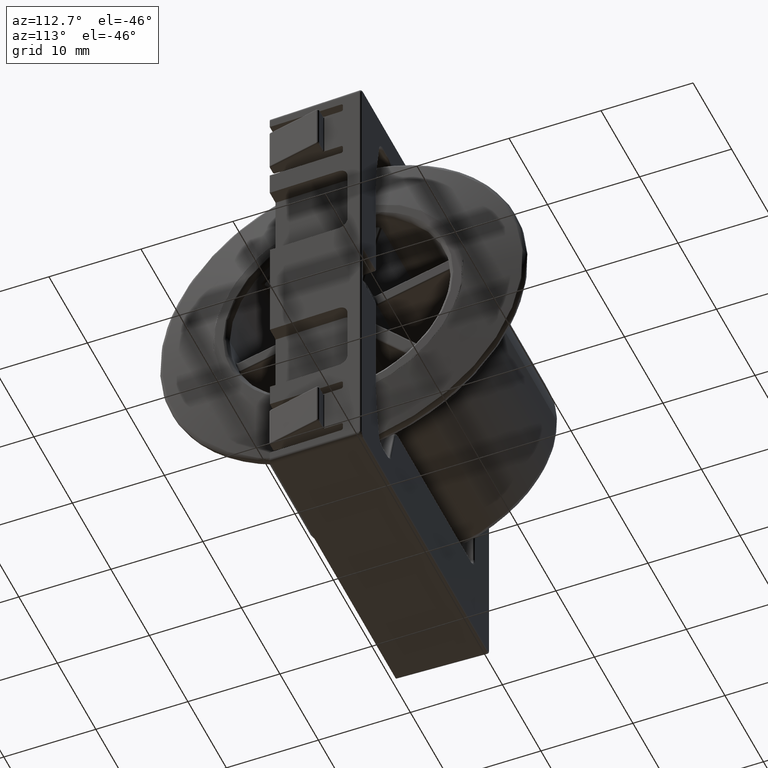
[diagram: clean part render]
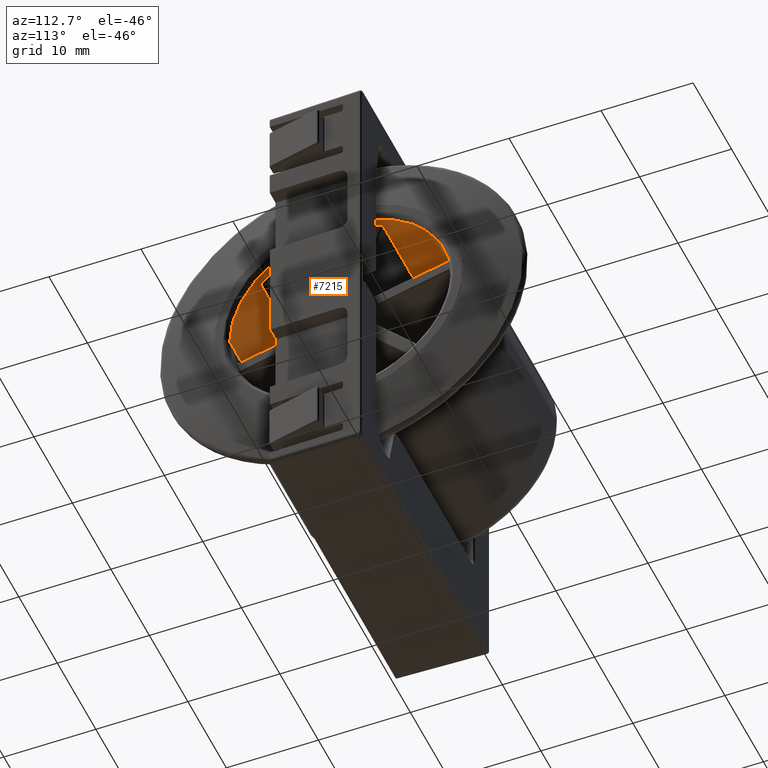
[diagram: same view with one face highlighted and labeled with its STEP entity id]
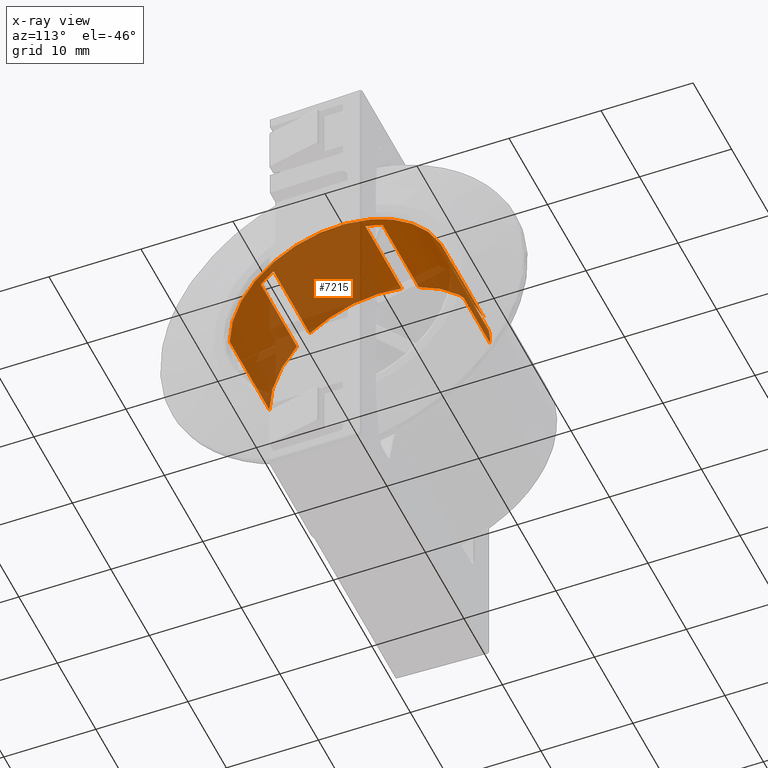
[diagram: x-ray of the same camera — body ghosted, the highlighted face saturated]
A machine part, auxiliary view. The second image highlights one B-rep face of the part: STEP entity #7215.
The next image is the same camera in x-ray: the body ghosted, the highlighted face saturated — about 63% of this face is hidden behind the body in this view.
In plain terms, the highlighted cylindrical surface (partial cylindrical patch) has radius 12 mm, axis along (1, 0, -0).
Its self-contained STEP definition (entity closure, byte-faithful):
#8 = DIRECTION ( 'NONE',  ( 1.000000000000000000, 1.473868700562970100E-017, -7.703719777548940000E-034 ) ) ;
#77 = EDGE_CURVE ( 'NONE', #23522, #9203, #17109, .T. ) ;
#351 = EDGE_CURVE ( 'NONE', #22895, #15847, #21067, .T. ) ;
#675 = VECTOR ( 'NONE', #27047, 1000.000000000000000 ) ;
#924 = CARTESIAN_POINT ( 'NONE',  ( 1.100000000000000300, -0.2693643625239829900, 11.22950230878101200 ) ) ;
#1006 = CIRCLE ( 'NONE', #19224, 12.00000000000000000 ) ;
#1454 = AXIS2_PLACEMENT_3D ( 'NONE', #14136, #23362, #21109 ) ;
#1519 = CARTESIAN_POINT ( 'NONE',  ( 1.100000000000000100, -2.126477903137598400, 11.76292450267812500 ) ) ;
#2023 = DIRECTION ( 'NONE',  ( 0.0000000000000000000, 1.000000000000000000, 0.0000000000000000000 ) ) ;
#2108 = ORIENTED_EDGE ( 'NONE', *, *, #10664, .F. ) ;
#2328 = CARTESIAN_POINT ( 'NONE',  ( 10.50000000000000000, -4.500000000000000900, -1.359533954965509900E-015 ) ) ;
#3437 = FACE_OUTER_BOUND ( 'NONE', #16529, .T. ) ;
#3600 = VECTOR ( 'NONE', #5505, 1000.000000000000000 ) ;
#3617 = DIRECTION ( 'NONE',  ( 1.000000000000000000, 1.473868700562970100E-017, -7.703719777548940000E-034 ) ) ;
#3627 = CARTESIAN_POINT ( 'NONE',  ( 10.50000000000000200, -13.50023039368646800, 7.936992683665712500 ) ) ;
#3759 = VECTOR ( 'NONE', #27382, 1000.000000000000000 ) ;
#4376 = VERTEX_POINT ( 'NONE', #20985 ) ;
#4740 = EDGE_CURVE ( 'NONE', #16416, #4376, #18727, .T. ) ;
#4778 = CARTESIAN_POINT ( 'NONE',  ( 1.099999999999999900, -4.500000000000000900, -1.359533954965509900E-015 ) ) ;
#4852 = CARTESIAN_POINT ( 'NONE',  ( 0.9000000000000010200, -2.126477903137590900, 11.76292450267814300 ) ) ;
#5117 = ORIENTED_EDGE ( 'NONE', *, *, #77, .F. ) ;
#5186 = VECTOR ( 'NONE', #20091, 1000.000000000000000 ) ;
#5237 = EDGE_CURVE ( 'NONE', #4376, #15624, #24364, .T. ) ;
#5275 = VECTOR ( 'NONE', #7250, 1000.000000000000000 ) ;
#5468 = CIRCLE ( 'NONE', #10091, 12.00000000000000000 ) ;
#5505 = DIRECTION ( 'NONE',  ( -1.000000000000000000, -1.473868700562970100E-017, 7.703719777548940000E-034 ) ) ;
#5790 = DIRECTION ( 'NONE',  ( 0.0000000000000000000, -0.2760693810520480900, -0.9611377096158172400 ) ) ;
#5873 = DIRECTION ( 'NONE',  ( 0.0000000000000000000, 1.000000000000000000, 0.0000000000000000000 ) ) ;
#6014 = ORIENTED_EDGE ( 'NONE', *, *, #9323, .F. ) ;
#6135 = CIRCLE ( 'NONE', #12942, 12.00000000000000000 ) ;
#6164 = CARTESIAN_POINT ( 'NONE',  ( 0.9000000000000011300, -13.50023039368644700, 7.936992683665692100 ) ) ;
#6785 = CIRCLE ( 'NONE', #9592, 12.00000000000000000 ) ;
#7034 = DIRECTION ( 'NONE',  ( -1.807003620809174000E-017, 1.000000000000000000, 0.0000000000000000000 ) ) ;
#7067 = CARTESIAN_POINT ( 'NONE',  ( 0.9000000000000008000, 7.500000000000000000, -1.359533954965509900E-015 ) ) ;
#7090 = VERTEX_POINT ( 'NONE', #11039 ) ;
#7215 = ADVANCED_FACE ( 'NONE', ( #3437 ), #20740, .F. ) ;
#7250 = DIRECTION ( 'NONE',  ( -1.000000000000000000, -1.473868700562970100E-017, 7.703719777548940000E-034 ) ) ;
#7402 = AXIS2_PLACEMENT_3D ( 'NONE', #15949, #18175, #7034 ) ;
#8208 = DIRECTION ( 'NONE',  ( 0.0000000000000000000, -0.2760693810520480900, -0.9611377096158172400 ) ) ;
#8479 = DIRECTION ( 'NONE',  ( -1.807003620809174000E-017, 1.000000000000000000, 0.0000000000000000000 ) ) ;
#9203 = VERTEX_POINT ( 'NONE', #24294 ) ;
#9323 = EDGE_CURVE ( 'NONE', #7090, #21336, #5468, .T. ) ;
#9411 = CARTESIAN_POINT ( 'NONE',  ( 10.50000000000000000, 6.873752490548920200, 3.825931819012501100 ) ) ;
#9573 = EDGE_CURVE ( 'NONE', #23338, #29112, #6135, .T. ) ;
#9592 = AXIS2_PLACEMENT_3D ( 'NONE', #17353, #15242, #14937 ) ;
#10091 = AXIS2_PLACEMENT_3D ( 'NONE', #4778, #8, #20431 ) ;
#10248 = VERTEX_POINT ( 'NONE', #21772 ) ;
#10607 = CIRCLE ( 'NONE', #15541, 12.00000000000000200 ) ;
#10664 = EDGE_CURVE ( 'NONE', #14793, #16416, #6785, .T. ) ;
#10792 = ORIENTED_EDGE ( 'NONE', *, *, #23291, .F. ) ;
#10817 = VECTOR ( 'NONE', #14913, 1000.000000000000000 ) ;
#11039 = CARTESIAN_POINT ( 'NONE',  ( 1.100000000000000300, -13.50023039368646000, 7.936992683665709900 ) ) ;
#11097 = ORIENTED_EDGE ( 'NONE', *, *, #9573, .F. ) ;
#11352 = ORIENTED_EDGE ( 'NONE', *, *, #14684, .F. ) ;
#11387 = LINE ( 'NONE', #28032, #28020 ) ;
#11461 = ORIENTED_EDGE ( 'NONE', *, *, #12202, .F. ) ;
#11949 = VERTEX_POINT ( 'NONE', #1519 ) ;
#12202 = EDGE_CURVE ( 'NONE', #15624, #11949, #17680, .T. ) ;
#12265 = LINE ( 'NONE', #6164, #16489 ) ;
#12642 = DIRECTION ( 'NONE',  ( 1.000000000000000000, 1.473868700562970100E-017, -7.703719777548940000E-034 ) ) ;
#12814 = AXIS2_PLACEMENT_3D ( 'NONE', #14676, #18993, #5790 ) ;
#12942 = AXIS2_PLACEMENT_3D ( 'NONE', #2328, #26884, #2023 ) ;
#13238 = CARTESIAN_POINT ( 'NONE',  ( 0.9000000000000008000, 6.873752490548915800, 3.825931819012498900 ) ) ;
#13799 = EDGE_CURVE ( 'NONE', #28523, #27301, #27281, .T. ) ;
#13839 = ORIENTED_EDGE ( 'NONE', *, *, #4740, .F. ) ;
#14136 = CARTESIAN_POINT ( 'NONE',  ( 10.50000000000000000, -4.500000000000000900, -1.359533954965509900E-015 ) ) ;
#14403 = CARTESIAN_POINT ( 'NONE',  ( 1.100000000000000100, 7.340352089998375200, 1.950913218180463400 ) ) ;
#14595 = CARTESIAN_POINT ( 'NONE',  ( 1.100000000000000100, -4.500000000000000900, -1.359533954965509900E-015 ) ) ;
#14676 = CARTESIAN_POINT ( 'NONE',  ( 11.40000000000000000, -4.500000000000000900, -1.359533954965509900E-015 ) ) ;
#14684 = EDGE_CURVE ( 'NONE', #27301, #15847, #10607, .T. ) ;
#14793 = VERTEX_POINT ( 'NONE', #27724 ) ;
#14913 = DIRECTION ( 'NONE',  ( 1.000000000000000000, 1.473868700562970100E-017, -7.703719777548940000E-034 ) ) ;
#14937 = DIRECTION ( 'NONE',  ( -1.807003620809174000E-017, 1.000000000000000000, 0.0000000000000000000 ) ) ;
#15030 = EDGE_CURVE ( 'NONE', #22895, #23522, #16579, .T. ) ;
#15065 = CARTESIAN_POINT ( 'NONE',  ( 11.40000000000000000, -4.500000000000000900, -1.359533954965509900E-015 ) ) ;
#15242 = DIRECTION ( 'NONE',  ( 1.000000000000000000, 1.473868700562970100E-017, -7.703719777548940000E-034 ) ) ;
#15448 = CARTESIAN_POINT ( 'NONE',  ( 1.100000000000000100, -16.50000000000000000, 1.100422040113139400E-016 ) ) ;
#15541 = AXIS2_PLACEMENT_3D ( 'NONE', #15065, #21766, #8208 ) ;
#15624 = VERTEX_POINT ( 'NONE', #28354 ) ;
#15847 = VERTEX_POINT ( 'NONE', #18478 ) ;
#15949 = CARTESIAN_POINT ( 'NONE',  ( 0.9000000000000010200, -4.500000000000000900, -1.359533954965509900E-015 ) ) ;
#16416 = VERTEX_POINT ( 'NONE', #924 ) ;
#16489 = VECTOR ( 'NONE', #21744, 1000.000000000000000 ) ;
#16529 = EDGE_LOOP ( 'NONE', ( #27415, #6014, #20160, #11097, #21576, #10792, #11461, #25025, #13839, #2108, #25462, #25397, #5117, #22422, #28601, #11352, #20867 ) ) ;
#16579 = CIRCLE ( 'NONE', #28485, 12.00000000000000000 ) ;
#16696 = CARTESIAN_POINT ( 'NONE',  ( 1.100000000000000100, 7.500000000000000000, -1.359533954965509900E-015 ) ) ;
#16813 = LINE ( 'NONE', #25851, #10817 ) ;
#16912 = EDGE_CURVE ( 'NONE', #18098, #14793, #19721, .T. ) ;
#17109 = LINE ( 'NONE', #17689, #5186 ) ;
#17353 = CARTESIAN_POINT ( 'NONE',  ( 1.100000000000000300, -4.500000000000000900, -1.359533954965509900E-015 ) ) ;
#17680 = LINE ( 'NONE', #4852, #3600 ) ;
#17689 = CARTESIAN_POINT ( 'NONE',  ( 0.9000000000000008000, 7.340352089998364500, 1.950913218180487400 ) ) ;
#18098 = VERTEX_POINT ( 'NONE', #9411 ) ;
#18175 = DIRECTION ( 'NONE',  ( 1.000000000000000000, 1.473868700562970100E-017, -7.703719777548940000E-034 ) ) ;
#18356 = CARTESIAN_POINT ( 'NONE',  ( 0.9000000000000009100, -0.2693643625239919800, 11.22950230878100400 ) ) ;
#18393 = EDGE_CURVE ( 'NONE', #21336, #28523, #16813, .T. ) ;
#18478 = CARTESIAN_POINT ( 'NONE',  ( 11.40000000000000000, 7.500000000000003600, -1.359533954965509900E-015 ) ) ;
#18727 = LINE ( 'NONE', #18356, #675 ) ;
#18993 = DIRECTION ( 'NONE',  ( -1.000000000000000000, -1.473868700562970100E-017, 7.703719777548940000E-034 ) ) ;
#19048 = DIRECTION ( 'NONE',  ( 1.000000000000000000, 1.473868700562970100E-017, -7.703719777548940000E-034 ) ) ;
#19224 = AXIS2_PLACEMENT_3D ( 'NONE', #28450, #3617, #5873 ) ;
#19721 = LINE ( 'NONE', #13238, #5275 ) ;
#20091 = DIRECTION ( 'NONE',  ( 1.000000000000000000, 1.473868700562970100E-017, -7.703719777548940000E-034 ) ) ;
#20160 = ORIENTED_EDGE ( 'NONE', *, *, #24521, .F. ) ;
#20431 = DIRECTION ( 'NONE',  ( -1.807003620809174000E-017, 1.000000000000000000, 0.0000000000000000000 ) ) ;
#20740 = CYLINDRICAL_SURFACE ( 'NONE', #7402, 12.00000000000000000 ) ;
#20867 = ORIENTED_EDGE ( 'NONE', *, *, #13799, .F. ) ;
#20985 = CARTESIAN_POINT ( 'NONE',  ( 10.50000000000000200, -0.2693643625239911500, 11.22950230878100800 ) ) ;
#21067 = LINE ( 'NONE', #7067, #3759 ) ;
#21109 = DIRECTION ( 'NONE',  ( 0.0000000000000000000, 1.000000000000000000, 0.0000000000000000000 ) ) ;
#21336 = VERTEX_POINT ( 'NONE', #15448 ) ;
#21530 = CARTESIAN_POINT ( 'NONE',  ( 11.40000000000000000, -1.187167427375424500, 11.53365251538980900 ) ) ;
#21576 = ORIENTED_EDGE ( 'NONE', *, *, #27202, .F. ) ;
#21588 = DIRECTION ( 'NONE',  ( -1.807003620809174000E-017, 1.000000000000000000, 0.0000000000000000000 ) ) ;
#21744 = DIRECTION ( 'NONE',  ( -1.000000000000000000, -1.473868700562970100E-017, 7.703719777548940000E-034 ) ) ;
#21766 = DIRECTION ( 'NONE',  ( -1.000000000000000000, -1.473868700562970100E-017, 7.703719777548940000E-034 ) ) ;
#21772 = CARTESIAN_POINT ( 'NONE',  ( 1.100000000000000100, -12.10971645252222500, 9.278589090600606300 ) ) ;
#22033 = DIRECTION ( 'NONE',  ( 1.000000000000000000, 1.473868700562970100E-017, -7.703719777548940000E-034 ) ) ;
#22292 = CIRCLE ( 'NONE', #29272, 12.00000000000000000 ) ;
#22422 = ORIENTED_EDGE ( 'NONE', *, *, #15030, .F. ) ;
#22895 = VERTEX_POINT ( 'NONE', #16696 ) ;
#23291 = EDGE_CURVE ( 'NONE', #11949, #10248, #22292, .T. ) ;
#23338 = VERTEX_POINT ( 'NONE', #28865 ) ;
#23362 = DIRECTION ( 'NONE',  ( 1.000000000000000000, 1.473868700562970100E-017, -7.703719777548940000E-034 ) ) ;
#23522 = VERTEX_POINT ( 'NONE', #14403 ) ;
#23675 = EDGE_CURVE ( 'NONE', #9203, #18098, #1006, .T. ) ;
#24294 = CARTESIAN_POINT ( 'NONE',  ( 10.50000000000000000, 7.340352089998353900, 1.950913218180485100 ) ) ;
#24311 = CARTESIAN_POINT ( 'NONE',  ( 1.100000000000000300, -4.500000000000000900, -1.359533954965509900E-015 ) ) ;
#24364 = CIRCLE ( 'NONE', #1454, 12.00000000000000000 ) ;
#24521 = EDGE_CURVE ( 'NONE', #29112, #7090, #12265, .T. ) ;
#24985 = CARTESIAN_POINT ( 'NONE',  ( 11.40000000000000000, -16.50000000000000400, 1.100422040113143200E-016 ) ) ;
#25025 = ORIENTED_EDGE ( 'NONE', *, *, #5237, .F. ) ;
#25397 = ORIENTED_EDGE ( 'NONE', *, *, #23675, .F. ) ;
#25462 = ORIENTED_EDGE ( 'NONE', *, *, #16912, .F. ) ;
#25851 = CARTESIAN_POINT ( 'NONE',  ( 0.9000000000000012400, -16.50000000000000000, 1.100422040113139400E-016 ) ) ;
#26884 = DIRECTION ( 'NONE',  ( 1.000000000000000000, 1.473868700562970100E-017, -7.703719777548940000E-034 ) ) ;
#27047 = DIRECTION ( 'NONE',  ( 1.000000000000000000, 1.473868700562970100E-017, -7.703719777548940000E-034 ) ) ;
#27202 = EDGE_CURVE ( 'NONE', #10248, #23338, #11387, .T. ) ;
#27281 = CIRCLE ( 'NONE', #12814, 12.00000000000000200 ) ;
#27301 = VERTEX_POINT ( 'NONE', #21530 ) ;
#27382 = DIRECTION ( 'NONE',  ( 1.000000000000000000, 1.473868700562970100E-017, -7.703719777548940000E-034 ) ) ;
#27415 = ORIENTED_EDGE ( 'NONE', *, *, #18393, .F. ) ;
#27724 = CARTESIAN_POINT ( 'NONE',  ( 1.100000000000000100, 6.873752490548922900, 3.825931819012497100 ) ) ;
#28020 = VECTOR ( 'NONE', #19048, 1000.000000000000000 ) ;
#28032 = CARTESIAN_POINT ( 'NONE',  ( 0.9000000000000011300, -12.10971645252221100, 9.278589090600615200 ) ) ;
#28354 = CARTESIAN_POINT ( 'NONE',  ( 10.50000000000000000, -2.126477903137595300, 11.76292450267812300 ) ) ;
#28450 = CARTESIAN_POINT ( 'NONE',  ( 10.50000000000000000, -4.500000000000000900, -1.359533954965509900E-015 ) ) ;
#28485 = AXIS2_PLACEMENT_3D ( 'NONE', #24311, #22033, #8479 ) ;
#28523 = VERTEX_POINT ( 'NONE', #24985 ) ;
#28601 = ORIENTED_EDGE ( 'NONE', *, *, #351, .T. ) ;
#28865 = CARTESIAN_POINT ( 'NONE',  ( 10.50000000000000000, -12.10971645252220700, 9.278589090600609900 ) ) ;
#29112 = VERTEX_POINT ( 'NONE', #3627 ) ;
#29272 = AXIS2_PLACEMENT_3D ( 'NONE', #14595, #12642, #21588 ) ;